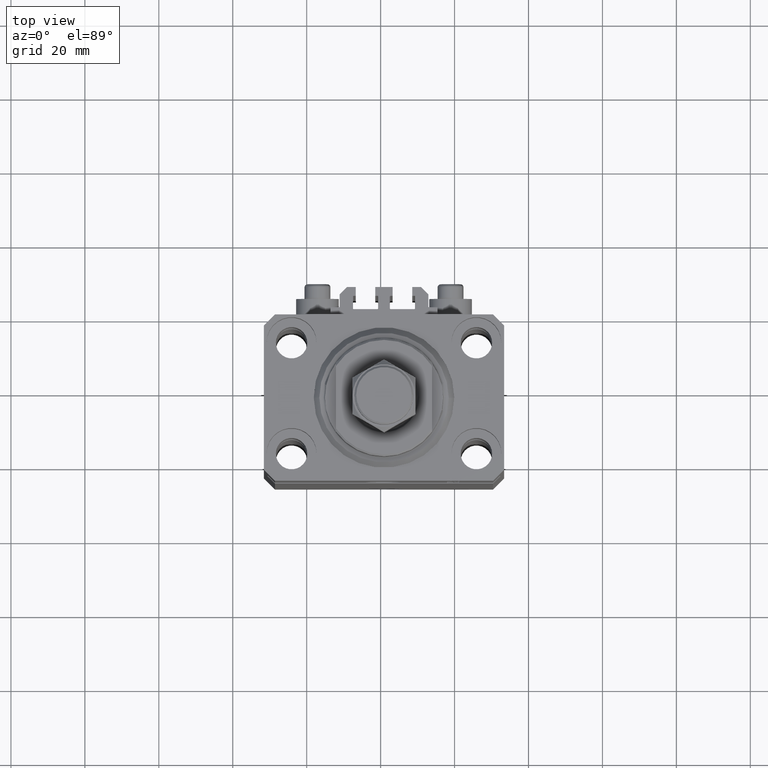
[diagram: clean part render]
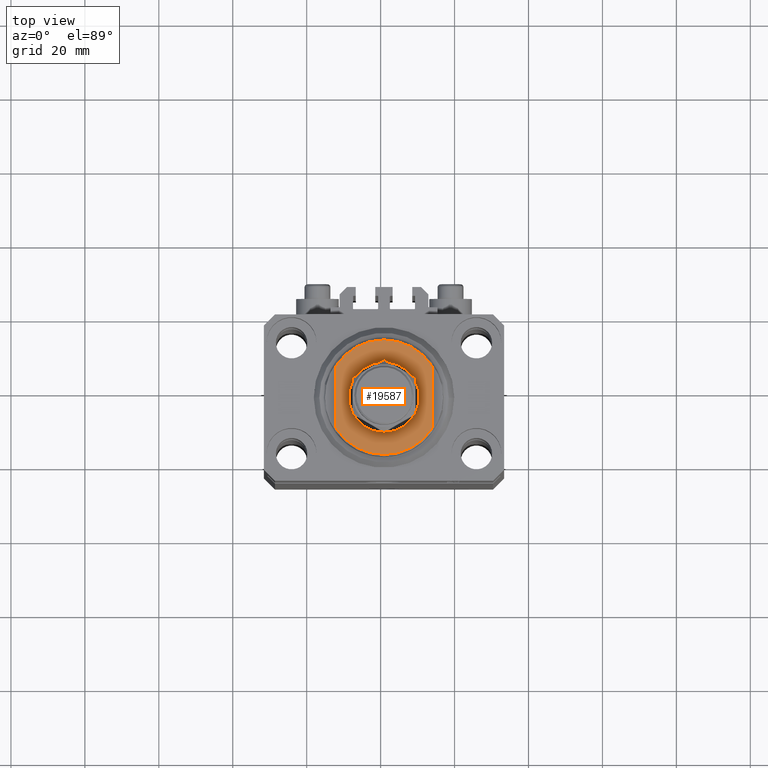
[diagram: same view with one face highlighted and labeled with its STEP entity id]
A machine part, top view. The second image highlights one B-rep face of the part: STEP entity #19587.
In plain terms, the highlighted planar face has unit normal (0, 0, 1).
Its self-contained STEP definition (entity closure, byte-faithful):
#381 = EDGE_CURVE ( 'NONE', #26664, #31939, #32706, .T. ) ;
#689 = EDGE_CURVE ( 'NONE', #39939, #44048, #32153, .T. ) ;
#1282 = AXIS2_PLACEMENT_3D ( 'NONE', #23902, #46332, #35723 ) ;
#3376 = CARTESIAN_POINT ( 'NONE',  ( 0.000000000000000000, 0.000000000000000000, -6.500000000000000000 ) ) ;
#3617 = CARTESIAN_POINT ( 'NONE',  ( -13.00000000000000000, 8.440971508067137918, -6.500000000000000000 ) ) ;
#5599 = FACE_BOUND ( 'NONE', #29828, .T. ) ;
#6539 = CARTESIAN_POINT ( 'NONE',  ( 9.500000000000001776, 1.163414459189985880E-15, -6.500000000000000000 ) ) ;
#8425 = DIRECTION ( 'NONE',  ( -1.000000000000000000, 0.000000000000000000, 0.000000000000000000 ) ) ;
#9928 = EDGE_CURVE ( 'NONE', #26664, #46729, #16091, .T. ) ;
#10327 = ORIENTED_EDGE ( 'NONE', *, *, #26766, .T. ) ;
#10891 = AXIS2_PLACEMENT_3D ( 'NONE', #13661, #13182, #13425 ) ;
#13182 = DIRECTION ( 'NONE',  ( -0.000000000000000000, -0.000000000000000000, 1.000000000000000000 ) ) ;
#13271 = PLANE ( 'NONE',  #1282 ) ;
#13425 = DIRECTION ( 'NONE',  ( -1.000000000000000000, 0.000000000000000000, 0.000000000000000000 ) ) ;
#13661 = CARTESIAN_POINT ( 'NONE',  ( 0.000000000000000000, 0.000000000000000000, -6.500000000000000000 ) ) ;
#14140 = EDGE_CURVE ( 'NONE', #48591, #31939, #37363, .T. ) ;
#14484 = LINE ( 'NONE', #32723, #41052 ) ;
#16091 = CIRCLE ( 'NONE', #46798, 15.50000000000003730 ) ;
#18232 = DIRECTION ( 'NONE',  ( -1.000000000000000000, 0.000000000000000000, 0.000000000000000000 ) ) ;
#19571 = VECTOR ( 'NONE', #43547, 1000.000000000000000 ) ;
#19587 = ADVANCED_FACE ( 'NONE', ( #5599, #46812 ), #13271, .T. ) ;
#21746 = CARTESIAN_POINT ( 'NONE',  ( -9.500000000000001776, 0.000000000000000000, -6.500000000000000000 ) ) ;
#22071 = ORIENTED_EDGE ( 'NONE', *, *, #689, .T. ) ;
#23902 = CARTESIAN_POINT ( 'NONE',  ( 0.000000000000000000, 0.000000000000000000, -6.500000000000000000 ) ) ;
#26658 = AXIS2_PLACEMENT_3D ( 'NONE', #3376, #37685, #18232 ) ;
#26664 = VERTEX_POINT ( 'NONE', #3617 ) ;
#26766 = EDGE_CURVE ( 'NONE', #44048, #39939, #47898, .T. ) ;
#26946 = ORIENTED_EDGE ( 'NONE', *, *, #381, .F. ) ;
#29828 = EDGE_LOOP ( 'NONE', ( #10327, #22071 ) ) ;
#30245 = CARTESIAN_POINT ( 'NONE',  ( 13.00000000000000000, 8.440971508067137918, -6.500000000000000000 ) ) ;
#31939 = VERTEX_POINT ( 'NONE', #48474 ) ;
#32057 = ORIENTED_EDGE ( 'NONE', *, *, #37960, .T. ) ;
#32153 = CIRCLE ( 'NONE', #10891, 9.500000000000001776 ) ;
#32691 = DIRECTION ( 'NONE',  ( -1.000000000000000000, 0.000000000000000000, 0.000000000000000000 ) ) ;
#32706 = LINE ( 'NONE', #48242, #19571 ) ;
#32723 = CARTESIAN_POINT ( 'NONE',  ( 13.00000000000000000, -43.08131845707602992, -6.500000000000000000 ) ) ;
#33918 = ORIENTED_EDGE ( 'NONE', *, *, #9928, .T. ) ;
#35723 = DIRECTION ( 'NONE',  ( -1.000000000000000000, 0.000000000000000000, -0.000000000000000000 ) ) ;
#37363 = CIRCLE ( 'NONE', #42887, 15.50000000000003730 ) ;
#37685 = DIRECTION ( 'NONE',  ( -0.000000000000000000, -0.000000000000000000, 1.000000000000000000 ) ) ;
#37960 = EDGE_CURVE ( 'NONE', #46729, #48591, #14484, .T. ) ;
#38472 = CARTESIAN_POINT ( 'NONE',  ( 13.00000000000000000, -8.440971508067137918, -6.500000000000000000 ) ) ;
#39607 = DIRECTION ( 'NONE',  ( 0.000000000000000000, 0.000000000000000000, -1.000000000000000000 ) ) ;
#39939 = VERTEX_POINT ( 'NONE', #6539 ) ;
#41052 = VECTOR ( 'NONE', #44555, 1000.000000000000000 ) ;
#41694 = EDGE_LOOP ( 'NONE', ( #33918, #32057, #45698, #26946 ) ) ;
#42887 = AXIS2_PLACEMENT_3D ( 'NONE', #44028, #39607, #32691 ) ;
#43547 = DIRECTION ( 'NONE',  ( -0.000000000000000000, -1.000000000000000000, -0.000000000000000000 ) ) ;
#44028 = CARTESIAN_POINT ( 'NONE',  ( 0.000000000000000000, 0.000000000000000000, -6.500000000000000000 ) ) ;
#44048 = VERTEX_POINT ( 'NONE', #21746 ) ;
#44555 = DIRECTION ( 'NONE',  ( 0.000000000000000000, -1.000000000000000000, -0.000000000000000000 ) ) ;
#45698 = ORIENTED_EDGE ( 'NONE', *, *, #14140, .T. ) ;
#45912 = CARTESIAN_POINT ( 'NONE',  ( 0.000000000000000000, 0.000000000000000000, -6.500000000000000000 ) ) ;
#46332 = DIRECTION ( 'NONE',  ( 0.000000000000000000, 0.000000000000000000, -1.000000000000000000 ) ) ;
#46644 = DIRECTION ( 'NONE',  ( 0.000000000000000000, 0.000000000000000000, -1.000000000000000000 ) ) ;
#46729 = VERTEX_POINT ( 'NONE', #30245 ) ;
#46798 = AXIS2_PLACEMENT_3D ( 'NONE', #45912, #46644, #8425 ) ;
#46812 = FACE_OUTER_BOUND ( 'NONE', #41694, .T. ) ;
#47898 = CIRCLE ( 'NONE', #26658, 9.500000000000001776 ) ;
#48242 = CARTESIAN_POINT ( 'NONE',  ( -13.00000000000000000, -43.08131845707602992, -6.500000000000000000 ) ) ;
#48474 = CARTESIAN_POINT ( 'NONE',  ( -13.00000000000000000, -8.440971508067137918, -6.500000000000000000 ) ) ;
#48591 = VERTEX_POINT ( 'NONE', #38472 ) ;